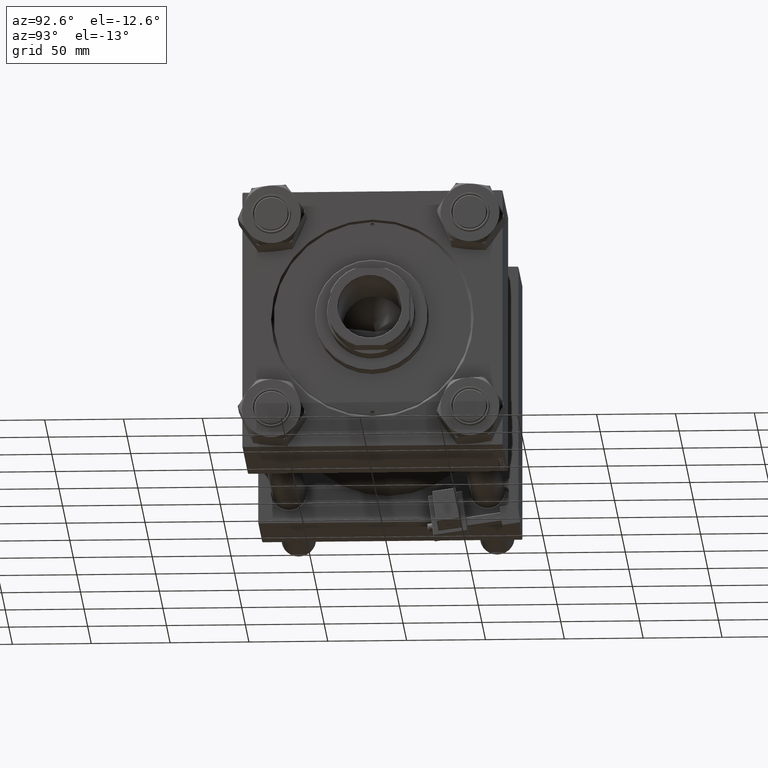
[diagram: clean part render]
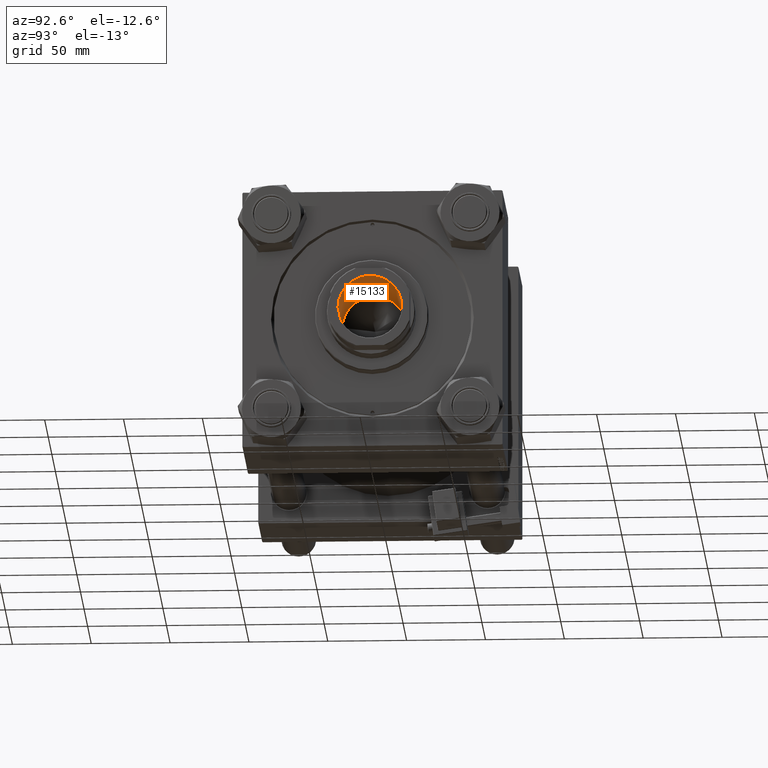
[diagram: same view with one face highlighted and labeled with its STEP entity id]
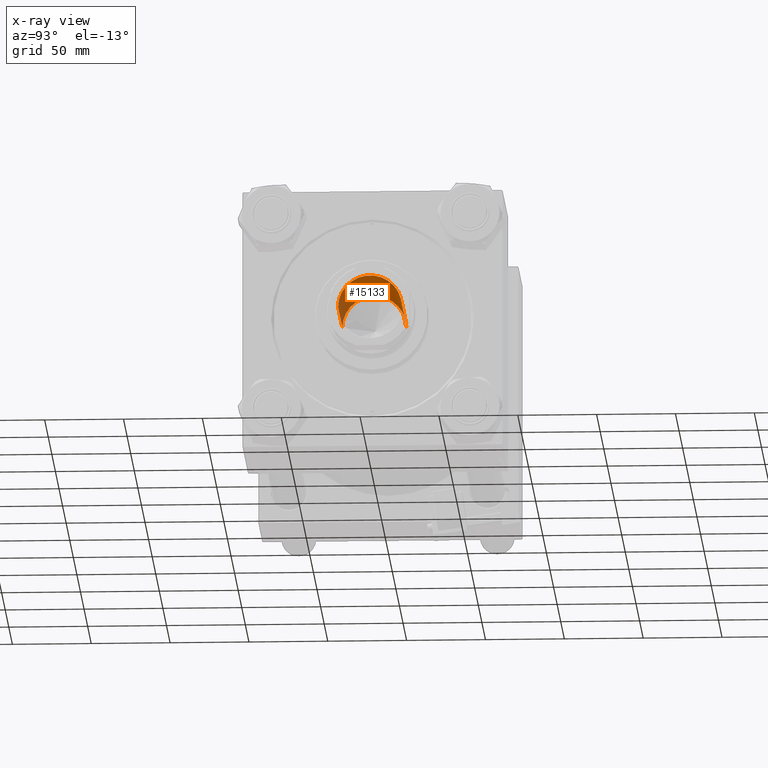
[diagram: x-ray of the same camera — body ghosted, the highlighted face saturated]
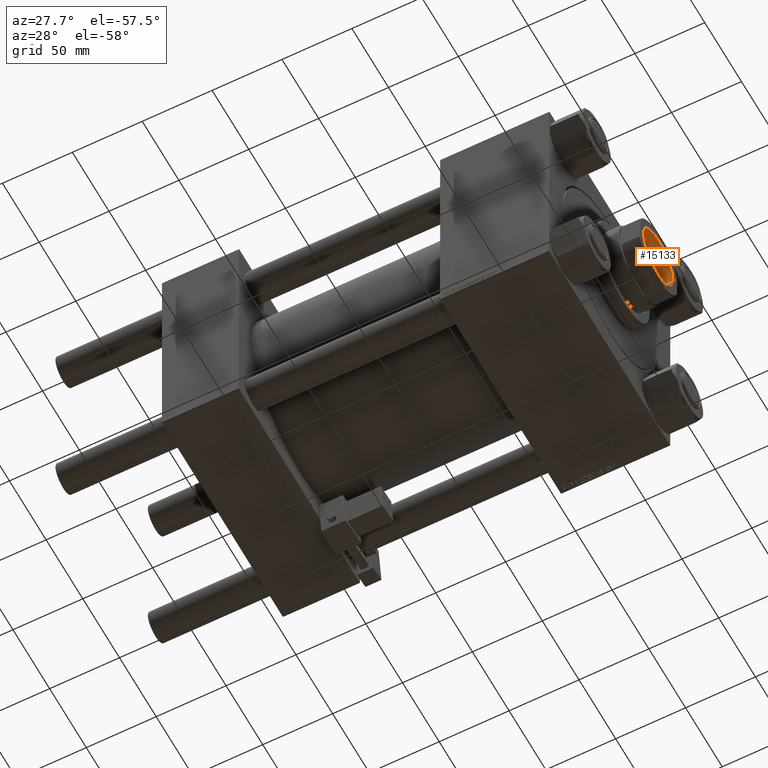
[diagram: same view with one face highlighted and labeled with its STEP entity id]
A machine part, auxiliary view. The second image highlights one B-rep face of the part: STEP entity #15133.
The next image is the same camera in x-ray: the body ghosted, the highlighted face saturated — about 1% of this face is hidden behind the body in this view.
A second angle (auxiliary view) of the same face is appended — the face is thin or edge-on in the first view.
In plain terms, the highlighted cylindrical surface (edge-blend (fillet) strip) has radius 20.25 mm, axis along (1, 0, -0).
Its self-contained STEP definition (entity closure, byte-faithful):
#491 = VERTEX_POINT ( 'NONE', #12764 ) ;
#929 = DIRECTION ( 'NONE',  ( -0.000000000000000000, -0.000000000000000000, 1.000000000000000000 ) ) ;
#1552 = VECTOR ( 'NONE', #35244, 1000.000000000000000 ) ;
#9305 = AXIS2_PLACEMENT_3D ( 'NONE', #37383, #929, #17683 ) ;
#9776 = CARTESIAN_POINT ( 'NONE',  ( -20.24999999999999289, 2.479909768273389511E-15, 257.0000000000000000 ) ) ;
#10873 = VERTEX_POINT ( 'NONE', #25879 ) ;
#12099 = ORIENTED_EDGE ( 'NONE', *, *, #44426, .T. ) ;
#12764 = CARTESIAN_POINT ( 'NONE',  ( -20.24999999999998934, 2.479909768273389117E-15, 196.0000000000000000 ) ) ;
#13150 = AXIS2_PLACEMENT_3D ( 'NONE', #17925, #33634, #29391 ) ;
#15133 = ADVANCED_FACE ( 'NONE', ( #45618 ), #49362, .F. ) ;
#16524 = ORIENTED_EDGE ( 'NONE', *, *, #46913, .F. ) ;
#17683 = DIRECTION ( 'NONE',  ( 1.000000000000000000, 0.000000000000000000, 0.000000000000000000 ) ) ;
#17925 = CARTESIAN_POINT ( 'NONE',  ( 0.000000000000000000, 0.000000000000000000, 196.0000000000000000 ) ) ;
#19558 = LINE ( 'NONE', #28069, #1552 ) ;
#19722 = ORIENTED_EDGE ( 'NONE', *, *, #22594, .F. ) ;
#20829 = CIRCLE ( 'NONE', #13150, 20.24999999999998934 ) ;
#22555 = ORIENTED_EDGE ( 'NONE', *, *, #23931, .T. ) ;
#22594 = EDGE_CURVE ( 'NONE', #46253, #34392, #19558, .T. ) ;
#23931 = EDGE_CURVE ( 'NONE', #491, #10873, #50747, .T. ) ;
#25879 = CARTESIAN_POINT ( 'NONE',  ( -20.24999999999999289, 2.479909768273389511E-15, 256.6999999999999886 ) ) ;
#26269 = DIRECTION ( 'NONE',  ( -0.000000000000000000, -0.000000000000000000, 1.000000000000000000 ) ) ;
#28069 = CARTESIAN_POINT ( 'NONE',  ( 20.24999999999999289, 0.000000000000000000, 257.0000000000000000 ) ) ;
#29190 = DIRECTION ( 'NONE',  ( 1.000000000000000000, 0.000000000000000000, 0.000000000000000000 ) ) ;
#29391 = DIRECTION ( 'NONE',  ( 1.000000000000000000, 0.000000000000000000, 0.000000000000000000 ) ) ;
#31974 = CIRCLE ( 'NONE', #37929, 20.24999999999999289 ) ;
#33634 = DIRECTION ( 'NONE',  ( -0.000000000000000000, -0.000000000000000000, 1.000000000000000000 ) ) ;
#34392 = VERTEX_POINT ( 'NONE', #50436 ) ;
#35244 = DIRECTION ( 'NONE',  ( -0.000000000000000000, -0.000000000000000000, 1.000000000000000000 ) ) ;
#37383 = CARTESIAN_POINT ( 'NONE',  ( 0.000000000000000000, 0.000000000000000000, 257.0000000000000000 ) ) ;
#37929 = AXIS2_PLACEMENT_3D ( 'NONE', #44619, #44890, #29190 ) ;
#39042 = CARTESIAN_POINT ( 'NONE',  ( 20.24999999999998934, 0.000000000000000000, 196.0000000000000000 ) ) ;
#43702 = EDGE_LOOP ( 'NONE', ( #16524, #22555, #12099, #19722 ) ) ;
#44426 = EDGE_CURVE ( 'NONE', #10873, #34392, #31974, .T. ) ;
#44619 = CARTESIAN_POINT ( 'NONE',  ( 0.000000000000000000, 0.000000000000000000, 256.6999999999999886 ) ) ;
#44890 = DIRECTION ( 'NONE',  ( 0.000000000000000000, 0.000000000000000000, 1.000000000000000000 ) ) ;
#45618 = FACE_OUTER_BOUND ( 'NONE', #43702, .T. ) ;
#46253 = VERTEX_POINT ( 'NONE', #39042 ) ;
#46913 = EDGE_CURVE ( 'NONE', #491, #46253, #20829, .T. ) ;
#49362 = CYLINDRICAL_SURFACE ( 'NONE', #9305, 20.24999999999999289 ) ;
#50436 = CARTESIAN_POINT ( 'NONE',  ( 20.24999999999999289, 0.000000000000000000, 256.6999999999999886 ) ) ;
#50747 = LINE ( 'NONE', #9776, #50855 ) ;
#50855 = VECTOR ( 'NONE', #26269, 1000.000000000000000 ) ;